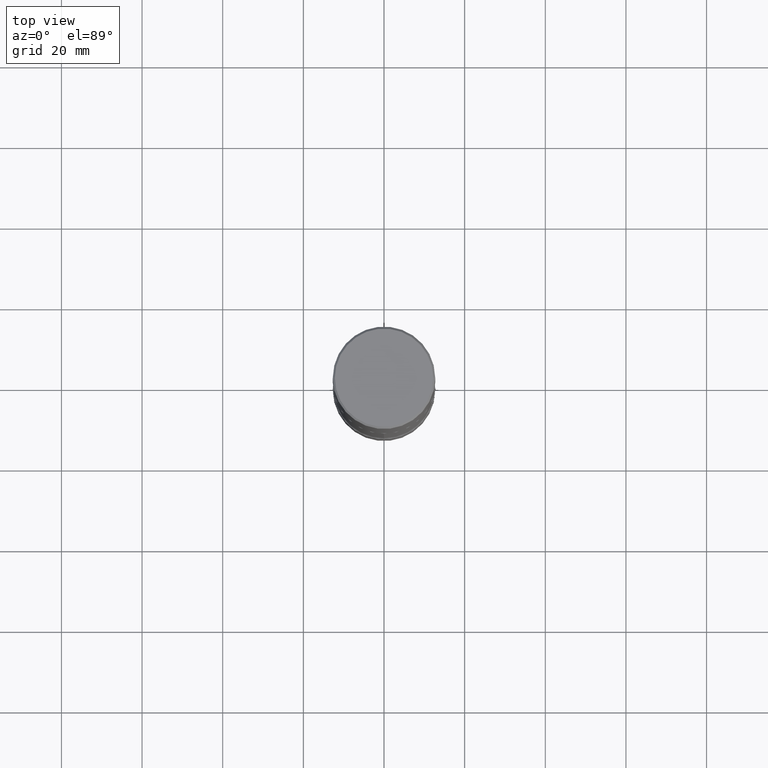
[diagram: clean part render]
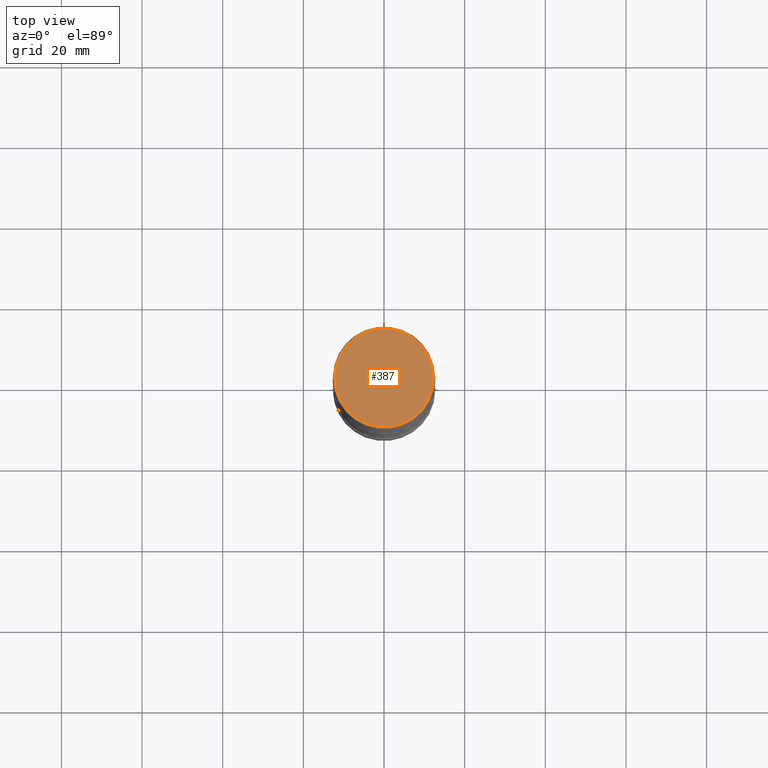
[diagram: same view with one face highlighted and labeled with its STEP entity id]
A machine part, top view. The second image highlights one B-rep face of the part: STEP entity #387.
In plain terms, the highlighted planar face has unit normal (0, -0, -1).
Its self-contained STEP definition (entity closure, byte-faithful):
#50 = VERTEX_POINT ( 'NONE', #134 ) ;
#92 = FACE_OUTER_BOUND ( 'NONE', #324, .T. ) ;
#93 = VERTEX_POINT ( 'NONE', #232 ) ;
#100 = AXIS2_PLACEMENT_3D ( 'NONE', #104, #286, #278 ) ;
#104 = CARTESIAN_POINT ( 'NONE',  ( -4.175405657340879278E-46, 5.961372681521788801E-32, 1.707404996040164512E-17 ) ) ;
#126 = EDGE_CURVE ( 'NONE', #50, #93, #501, .T. ) ;
#134 = CARTESIAN_POINT ( 'NONE',  ( -0.4799999999999999267, 3.386736898677838802E-15, 1.707404996037808406E-17 ) ) ;
#138 = DIRECTION ( 'NONE',  ( -1.000000000000000000, 6.982962677686265922E-15, -4.876176775795935793E-29 ) ) ;
#154 = AXIS2_PLACEMENT_3D ( 'NONE', #314, #180, #138 ) ;
#166 = DIRECTION ( 'NONE',  ( -2.445468806185136597E-29, 3.491481338843145583E-15, 1.000000000000000000 ) ) ;
#170 = DIRECTION ( 'NONE',  ( 1.000000000000000000, -6.982962677686266711E-15, 4.876431871984414276E-29 ) ) ;
#180 = DIRECTION ( 'NONE',  ( 2.438088387897960049E-29, -3.491481338843145188E-15, -1.000000000000000000 ) ) ;
#232 = CARTESIAN_POINT ( 'NONE',  ( 0.4799999999999999267, -3.396558832296482099E-15, 1.707404996042524007E-17 ) ) ;
#235 = AXIS2_PLACEMENT_3D ( 'NONE', #462, #166, #170 ) ;
#243 = CIRCLE ( 'NONE', #235, 0.4799999999999999267 ) ;
#278 = DIRECTION ( 'NONE',  ( 1.000000000000000000, -6.982962677686266711E-15, 4.876431871984414276E-29 ) ) ;
#280 = EDGE_CURVE ( 'NONE', #93, #50, #243, .T. ) ;
#286 = DIRECTION ( 'NONE',  ( -2.445468806185136597E-29, 3.491481338843145583E-15, 1.000000000000000000 ) ) ;
#303 = ORIENTED_EDGE ( 'NONE', *, *, #126, .T. ) ;
#309 = ORIENTED_EDGE ( 'NONE', *, *, #280, .T. ) ;
#314 = CARTESIAN_POINT ( 'NONE',  ( 3.351822085289407153E-15, 0.4799999999999999267, -1.667374017664508837E-15 ) ) ;
#324 = EDGE_LOOP ( 'NONE', ( #303, #309 ) ) ;
#387 = ADVANCED_FACE ( 'NONE', ( #92 ), #442, .F. ) ;
#442 = PLANE ( 'NONE',  #154 ) ;
#462 = CARTESIAN_POINT ( 'NONE',  ( -4.175405657340879278E-46, 5.961372681521788801E-32, 1.707404996040164512E-17 ) ) ;
#501 = CIRCLE ( 'NONE', #100, 0.4799999999999999267 ) ;